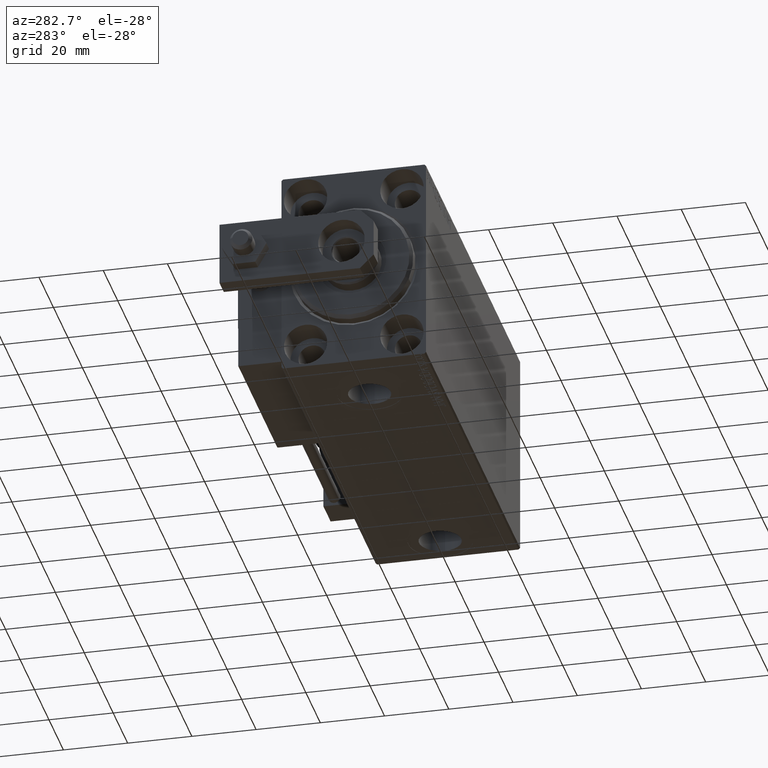
[diagram: clean part render]
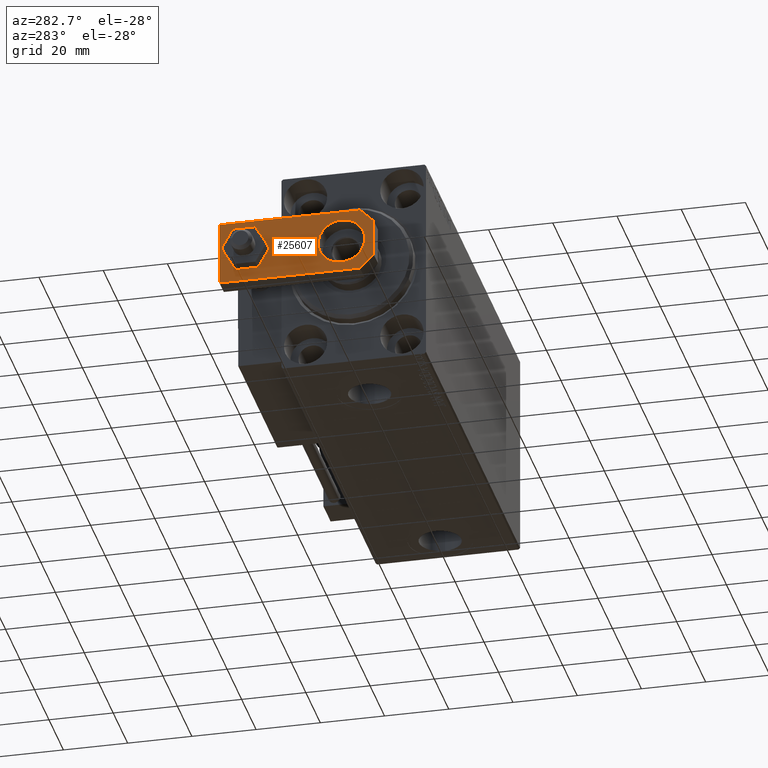
[diagram: same view with one face highlighted and labeled with its STEP entity id]
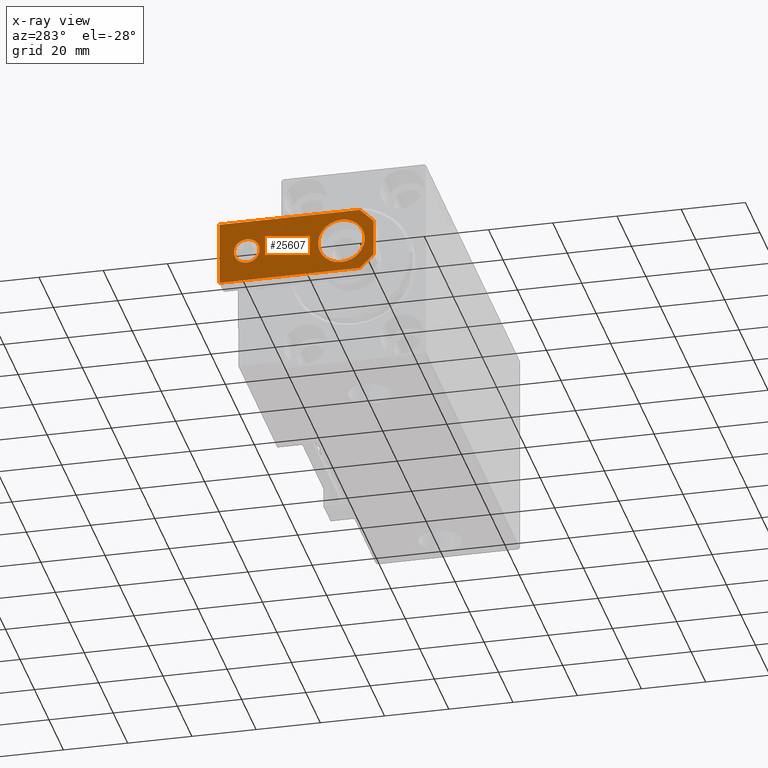
[diagram: x-ray of the same camera — body ghosted, the highlighted face saturated]
A machine part, auxiliary view. The second image highlights one B-rep face of the part: STEP entity #25607.
The next image is the same camera in x-ray: the body ghosted, the highlighted face saturated — about 0% of this face is hidden behind the body in this view.
In plain terms, the highlighted planar face has unit normal (-1, 0, 0).
Its self-contained STEP definition (entity closure, byte-faithful):
#389 = PLANE ( 'NONE',  #26806 ) ;
#817 = VERTEX_POINT ( 'NONE', #15158 ) ;
#1216 = VERTEX_POINT ( 'NONE', #10006 ) ;
#1812 = VECTOR ( 'NONE', #40086, 1000.000000000000114 ) ;
#1841 = AXIS2_PLACEMENT_3D ( 'NONE', #31812, #17760, #36593 ) ;
#3428 = VERTEX_POINT ( 'NONE', #5184 ) ;
#3452 = DIRECTION ( 'NONE',  ( -1.084202172485504434E-16, -1.000000000000000000, 0.000000000000000000 ) ) ;
#3708 = FACE_OUTER_BOUND ( 'NONE', #13201, .T. ) ;
#3870 = CIRCLE ( 'NONE', #11218, 4.000000000000000888 ) ;
#4061 = VECTOR ( 'NONE', #45297, 1000.000000000000000 ) ;
#4201 = CARTESIAN_POINT ( 'NONE',  ( -10.00000000000000000, 48.00000000000000000, 6.000000000000000000 ) ) ;
#4217 = FACE_BOUND ( 'NONE', #42929, .T. ) ;
#5184 = CARTESIAN_POINT ( 'NONE',  ( 10.00000000000000533, 4.239999999999986890, 6.000000000000000000 ) ) ;
#5746 = CARTESIAN_POINT ( 'NONE',  ( -10.00000000000000533, 4.240000000000021529, 6.000000000000000000 ) ) ;
#6616 = CARTESIAN_POINT ( 'NONE',  ( -10.00000000000000533, 0.000000000000000000, 6.000000000000000000 ) ) ;
#6968 = CARTESIAN_POINT ( 'NONE',  ( 10.00000000000000178, 48.00000000000000000, 6.000000000000000000 ) ) ;
#8959 = CARTESIAN_POINT ( 'NONE',  ( 5.759999999999998010, 0.000000000000000000, 6.000000000000000000 ) ) ;
#9189 = EDGE_CURVE ( 'NONE', #15790, #9952, #26765, .T. ) ;
#9952 = VERTEX_POINT ( 'NONE', #46509 ) ;
#10006 = CARTESIAN_POINT ( 'NONE',  ( -4.000000000000000888, 39.50000000000000000, 6.000000000000000000 ) ) ;
#10245 = ORIENTED_EDGE ( 'NONE', *, *, #26559, .T. ) ;
#10777 = CIRCLE ( 'NONE', #1841, 4.000000000000000888 ) ;
#11218 = AXIS2_PLACEMENT_3D ( 'NONE', #19645, #46369, #27018 ) ;
#12199 = LINE ( 'NONE', #38885, #47214 ) ;
#12373 = CARTESIAN_POINT ( 'NONE',  ( 2.879999999999984350, -2.879999999999999005, 6.000000000000000000 ) ) ;
#12624 = EDGE_CURVE ( 'NONE', #26567, #32177, #16830, .T. ) ;
#13201 = EDGE_LOOP ( 'NONE', ( #49203, #13552, #10245, #17674, #16148, #31939 ) ) ;
#13382 = EDGE_CURVE ( 'NONE', #39806, #817, #31312, .T. ) ;
#13552 = ORIENTED_EDGE ( 'NONE', *, *, #9189, .T. ) ;
#14537 = ORIENTED_EDGE ( 'NONE', *, *, #45944, .F. ) ;
#15158 = CARTESIAN_POINT ( 'NONE',  ( -10.00000000000000000, 48.00000000000000000, 6.000000000000000000 ) ) ;
#15790 = VERTEX_POINT ( 'NONE', #5746 ) ;
#16148 = ORIENTED_EDGE ( 'NONE', *, *, #27783, .T. ) ;
#16830 = CIRCLE ( 'NONE', #21730, 7.250000000000000000 ) ;
#17674 = ORIENTED_EDGE ( 'NONE', *, *, #48936, .T. ) ;
#17760 = DIRECTION ( 'NONE',  ( 0.000000000000000000, 0.000000000000000000, 1.000000000000000000 ) ) ;
#18132 = EDGE_CURVE ( 'NONE', #1216, #23922, #3870, .T. ) ;
#19233 = CARTESIAN_POINT ( 'NONE',  ( 0.000000000000000000, 0.000000000000000000, 6.000000000000000000 ) ) ;
#19486 = DIRECTION ( 'NONE',  ( 1.000000000000000000, 0.000000000000000000, 0.000000000000000000 ) ) ;
#19645 = CARTESIAN_POINT ( 'NONE',  ( -1.432611055310774642E-16, 39.50000000000000000, 6.000000000000000000 ) ) ;
#20132 = CARTESIAN_POINT ( 'NONE',  ( 10.00000000000000178, 48.00000000000000000, 6.000000000000000000 ) ) ;
#20611 = DIRECTION ( 'NONE',  ( 0.000000000000000000, 0.000000000000000000, 1.000000000000000000 ) ) ;
#20860 = DIRECTION ( 'NONE',  ( 1.000000000000000000, 0.000000000000000000, 0.000000000000000000 ) ) ;
#21730 = AXIS2_PLACEMENT_3D ( 'NONE', #33022, #40657, #44737 ) ;
#22058 = EDGE_LOOP ( 'NONE', ( #38845, #26855 ) ) ;
#22535 = VECTOR ( 'NONE', #38687, 1000.000000000000000 ) ;
#23220 = CARTESIAN_POINT ( 'NONE',  ( -2.880000000000006999, -2.879999999999998561, 6.000000000000000000 ) ) ;
#23922 = VERTEX_POINT ( 'NONE', #39525 ) ;
#24181 = CARTESIAN_POINT ( 'NONE',  ( 7.250000000000000000, 10.00000000000000355, 6.000000000000000000 ) ) ;
#25607 = ADVANCED_FACE ( 'NONE', ( #38555, #3708, #4217 ), #389, .T. ) ;
#26559 = EDGE_CURVE ( 'NONE', #9952, #28614, #44804, .T. ) ;
#26567 = VERTEX_POINT ( 'NONE', #37141 ) ;
#26765 = LINE ( 'NONE', #23220, #48866 ) ;
#26806 = AXIS2_PLACEMENT_3D ( 'NONE', #19233, #35756, #19486 ) ;
#26855 = ORIENTED_EDGE ( 'NONE', *, *, #49601, .F. ) ;
#27018 = DIRECTION ( 'NONE',  ( 1.000000000000000000, 0.000000000000000000, 0.000000000000000000 ) ) ;
#27783 = EDGE_CURVE ( 'NONE', #3428, #39806, #12199, .T. ) ;
#28042 = ORIENTED_EDGE ( 'NONE', *, *, #12624, .F. ) ;
#28614 = VERTEX_POINT ( 'NONE', #8959 ) ;
#31312 = LINE ( 'NONE', #20132, #22535 ) ;
#31812 = CARTESIAN_POINT ( 'NONE',  ( -1.432611055310774642E-16, 39.50000000000000000, 6.000000000000000000 ) ) ;
#31939 = ORIENTED_EDGE ( 'NONE', *, *, #13382, .T. ) ;
#32177 = VERTEX_POINT ( 'NONE', #24181 ) ;
#32565 = AXIS2_PLACEMENT_3D ( 'NONE', #36372, #20611, #20860 ) ;
#33022 = CARTESIAN_POINT ( 'NONE',  ( -9.629649721936179265E-32, 10.00000000000000178, 6.000000000000000000 ) ) ;
#34914 = DIRECTION ( 'NONE',  ( 0.7071067811865464625, -0.7071067811865486830, 0.000000000000000000 ) ) ;
#35501 = LINE ( 'NONE', #12373, #1812 ) ;
#35756 = DIRECTION ( 'NONE',  ( -0.000000000000000000, 0.000000000000000000, 1.000000000000000000 ) ) ;
#36372 = CARTESIAN_POINT ( 'NONE',  ( -9.629649721936179265E-32, 10.00000000000000178, 6.000000000000000000 ) ) ;
#36593 = DIRECTION ( 'NONE',  ( 1.000000000000000000, 0.000000000000000000, 0.000000000000000000 ) ) ;
#37141 = CARTESIAN_POINT ( 'NONE',  ( -7.250000000000000000, 10.00000000000000178, 6.000000000000000000 ) ) ;
#37346 = VECTOR ( 'NONE', #3452, 1000.000000000000000 ) ;
#38555 = FACE_BOUND ( 'NONE', #22058, .T. ) ;
#38687 = DIRECTION ( 'NONE',  ( -1.000000000000000000, 0.000000000000000000, 0.000000000000000000 ) ) ;
#38845 = ORIENTED_EDGE ( 'NONE', *, *, #18132, .F. ) ;
#38885 = CARTESIAN_POINT ( 'NONE',  ( 10.00000000000000533, 0.000000000000000000, 6.000000000000000000 ) ) ;
#39057 = LINE ( 'NONE', #4201, #37346 ) ;
#39525 = CARTESIAN_POINT ( 'NONE',  ( 4.000000000000000888, 39.50000000000000000, 6.000000000000000000 ) ) ;
#39555 = EDGE_CURVE ( 'NONE', #817, #15790, #39057, .T. ) ;
#39806 = VERTEX_POINT ( 'NONE', #6968 ) ;
#40086 = DIRECTION ( 'NONE',  ( 0.7071067811865492381, 0.7071067811865457964, -0.000000000000000000 ) ) ;
#40657 = DIRECTION ( 'NONE',  ( 0.000000000000000000, 0.000000000000000000, 1.000000000000000000 ) ) ;
#42929 = EDGE_LOOP ( 'NONE', ( #28042, #14537 ) ) ;
#43233 = DIRECTION ( 'NONE',  ( -7.228014483236695816E-17, 1.000000000000000000, 0.000000000000000000 ) ) ;
#44737 = DIRECTION ( 'NONE',  ( 1.000000000000000000, 0.000000000000000000, 0.000000000000000000 ) ) ;
#44804 = LINE ( 'NONE', #6616, #4061 ) ;
#45297 = DIRECTION ( 'NONE',  ( 1.000000000000000000, 0.000000000000000000, 0.000000000000000000 ) ) ;
#45944 = EDGE_CURVE ( 'NONE', #32177, #26567, #48063, .T. ) ;
#46369 = DIRECTION ( 'NONE',  ( 0.000000000000000000, 0.000000000000000000, 1.000000000000000000 ) ) ;
#46509 = CARTESIAN_POINT ( 'NONE',  ( -5.759999999999997122, 0.000000000000000000, 6.000000000000000000 ) ) ;
#47214 = VECTOR ( 'NONE', #43233, 1000.000000000000000 ) ;
#48063 = CIRCLE ( 'NONE', #32565, 7.250000000000000000 ) ;
#48866 = VECTOR ( 'NONE', #34914, 999.9999999999998863 ) ;
#48936 = EDGE_CURVE ( 'NONE', #28614, #3428, #35501, .T. ) ;
#49203 = ORIENTED_EDGE ( 'NONE', *, *, #39555, .T. ) ;
#49601 = EDGE_CURVE ( 'NONE', #23922, #1216, #10777, .T. ) ;